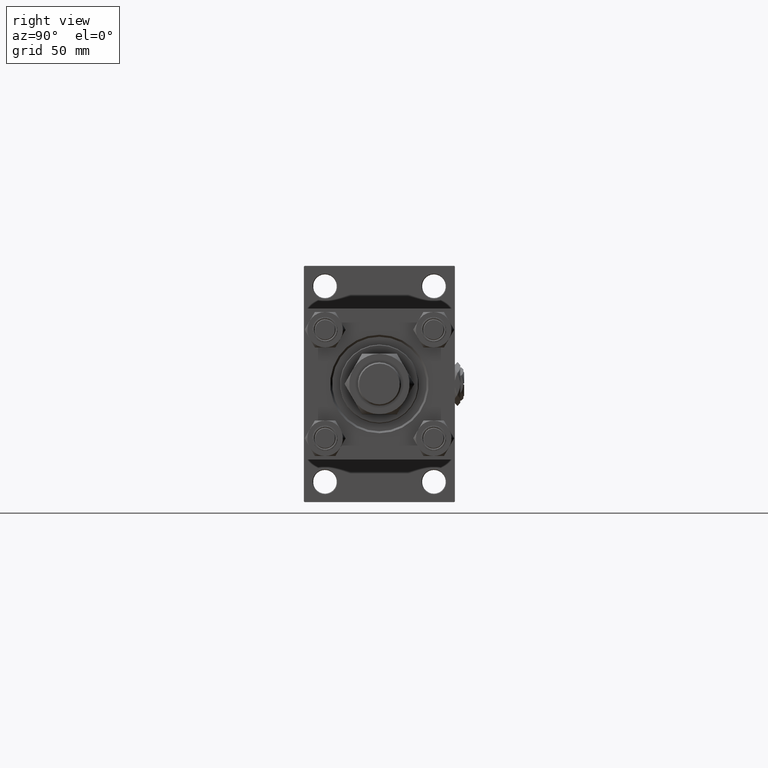
[diagram: clean part render]
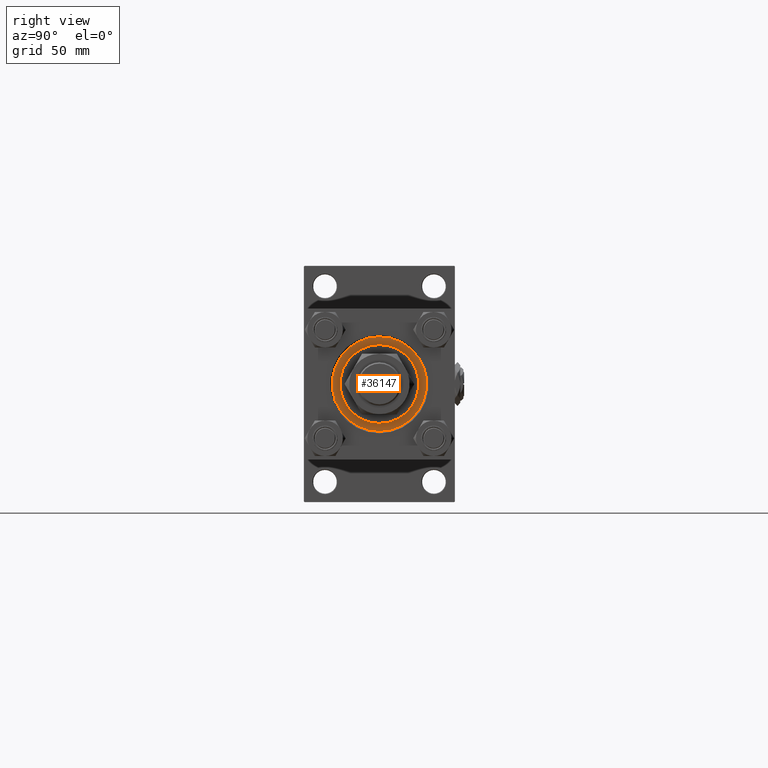
[diagram: same view with one face highlighted and labeled with its STEP entity id]
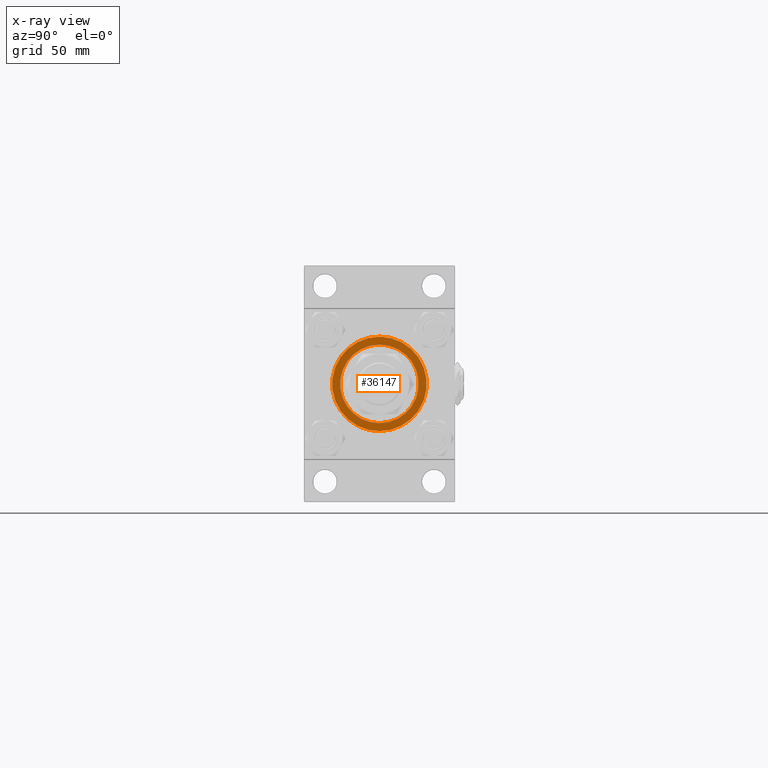
[diagram: x-ray of the same camera — body ghosted, the highlighted face saturated]
A machine part, right view. The second image highlights one B-rep face of the part: STEP entity #36147.
The next image is the same camera in x-ray: the body ghosted, the highlighted face saturated — about 0% of this face is hidden behind the body in this view.
In plain terms, the highlighted planar face has unit normal (1, 0, 0).
Its self-contained STEP definition (entity closure, byte-faithful):
#2132 = ORIENTED_EDGE ( 'NONE', *, *, #9503, .T. ) ;
#3382 = CARTESIAN_POINT ( 'NONE',  ( 0.000000000000000000, 0.000000000000000000, 28.69999999999999929 ) ) ;
#4642 = DIRECTION ( 'NONE',  ( 1.000000000000000000, 0.000000000000000000, 0.000000000000000000 ) ) ;
#5132 = CARTESIAN_POINT ( 'NONE',  ( -36.00000000000000000, 0.000000000000000000, 28.69999999999999929 ) ) ;
#5344 = ORIENTED_EDGE ( 'NONE', *, *, #37495, .F. ) ;
#6660 = DIRECTION ( 'NONE',  ( 1.000000000000000000, 0.000000000000000000, -0.000000000000000000 ) ) ;
#7755 = DIRECTION ( 'NONE',  ( 1.000000000000000000, 0.000000000000000000, 0.000000000000000000 ) ) ;
#9503 = EDGE_CURVE ( 'NONE', #27576, #26811, #11461, .T. ) ;
#10017 = AXIS2_PLACEMENT_3D ( 'NONE', #39007, #23094, #6660 ) ;
#10329 = CIRCLE ( 'NONE', #33916, 30.00000000000000000 ) ;
#10779 = FACE_BOUND ( 'NONE', #16695, .T. ) ;
#10938 = CIRCLE ( 'NONE', #34544, 30.00000000000000000 ) ;
#11461 = CIRCLE ( 'NONE', #40329, 36.00000000000000000 ) ;
#14436 = CARTESIAN_POINT ( 'NONE',  ( 30.00000000000000000, 3.673940397442059178E-15, 28.69999999999999929 ) ) ;
#16695 = EDGE_LOOP ( 'NONE', ( #23918, #5344 ) ) ;
#18184 = FACE_OUTER_BOUND ( 'NONE', #44627, .T. ) ;
#19765 = DIRECTION ( 'NONE',  ( 0.000000000000000000, 0.000000000000000000, 1.000000000000000000 ) ) ;
#22077 = ORIENTED_EDGE ( 'NONE', *, *, #22671, .T. ) ;
#22671 = EDGE_CURVE ( 'NONE', #26811, #27576, #45068, .T. ) ;
#23094 = DIRECTION ( 'NONE',  ( 0.000000000000000000, 0.000000000000000000, 1.000000000000000000 ) ) ;
#23918 = ORIENTED_EDGE ( 'NONE', *, *, #31330, .F. ) ;
#24537 = CARTESIAN_POINT ( 'NONE',  ( 0.000000000000000000, 0.000000000000000000, 28.69999999999999929 ) ) ;
#25442 = CARTESIAN_POINT ( 'NONE',  ( 0.000000000000000000, 0.000000000000000000, 28.69999999999999929 ) ) ;
#25919 = CARTESIAN_POINT ( 'NONE',  ( -30.00000000000000000, 0.000000000000000000, 28.69999999999999929 ) ) ;
#26811 = VERTEX_POINT ( 'NONE', #5132 ) ;
#26927 = PLANE ( 'NONE',  #10017 ) ;
#27576 = VERTEX_POINT ( 'NONE', #31987 ) ;
#31330 = EDGE_CURVE ( 'NONE', #47338, #39677, #10329, .T. ) ;
#31987 = CARTESIAN_POINT ( 'NONE',  ( 36.00000000000000000, 4.408728476930470856E-15, 28.69999999999999929 ) ) ;
#32349 = CARTESIAN_POINT ( 'NONE',  ( 0.000000000000000000, 0.000000000000000000, 28.69999999999999929 ) ) ;
#33916 = AXIS2_PLACEMENT_3D ( 'NONE', #32349, #19765, #53995 ) ;
#34544 = AXIS2_PLACEMENT_3D ( 'NONE', #24537, #53048, #36869 ) ;
#36147 = ADVANCED_FACE ( 'NONE', ( #10779, #18184 ), #26927, .T. ) ;
#36305 = AXIS2_PLACEMENT_3D ( 'NONE', #3382, #53761, #7755 ) ;
#36869 = DIRECTION ( 'NONE',  ( 1.000000000000000000, 0.000000000000000000, 0.000000000000000000 ) ) ;
#37495 = EDGE_CURVE ( 'NONE', #39677, #47338, #10938, .T. ) ;
#39007 = CARTESIAN_POINT ( 'NONE',  ( 0.000000000000000000, 0.000000000000000000, 28.69999999999999929 ) ) ;
#39677 = VERTEX_POINT ( 'NONE', #14436 ) ;
#40329 = AXIS2_PLACEMENT_3D ( 'NONE', #25442, #53933, #4642 ) ;
#44627 = EDGE_LOOP ( 'NONE', ( #22077, #2132 ) ) ;
#45068 = CIRCLE ( 'NONE', #36305, 36.00000000000000000 ) ;
#47338 = VERTEX_POINT ( 'NONE', #25919 ) ;
#53048 = DIRECTION ( 'NONE',  ( 0.000000000000000000, 0.000000000000000000, 1.000000000000000000 ) ) ;
#53761 = DIRECTION ( 'NONE',  ( 0.000000000000000000, 0.000000000000000000, 1.000000000000000000 ) ) ;
#53933 = DIRECTION ( 'NONE',  ( 0.000000000000000000, 0.000000000000000000, 1.000000000000000000 ) ) ;
#53995 = DIRECTION ( 'NONE',  ( 1.000000000000000000, 0.000000000000000000, 0.000000000000000000 ) ) ;